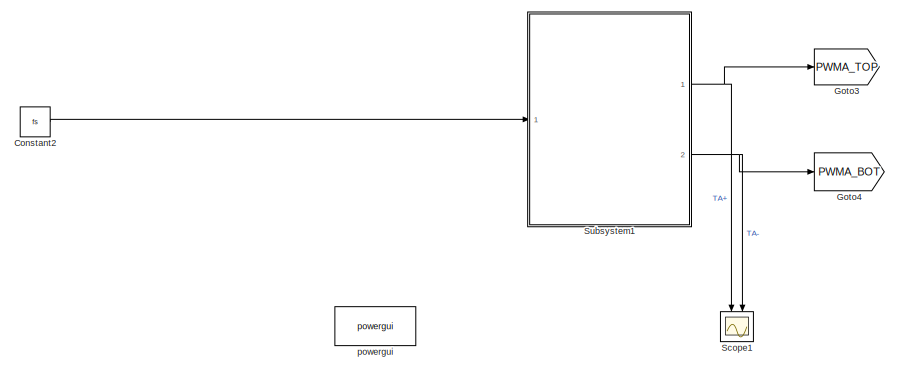
[diagram: root canvas - part 1/7, top center region]
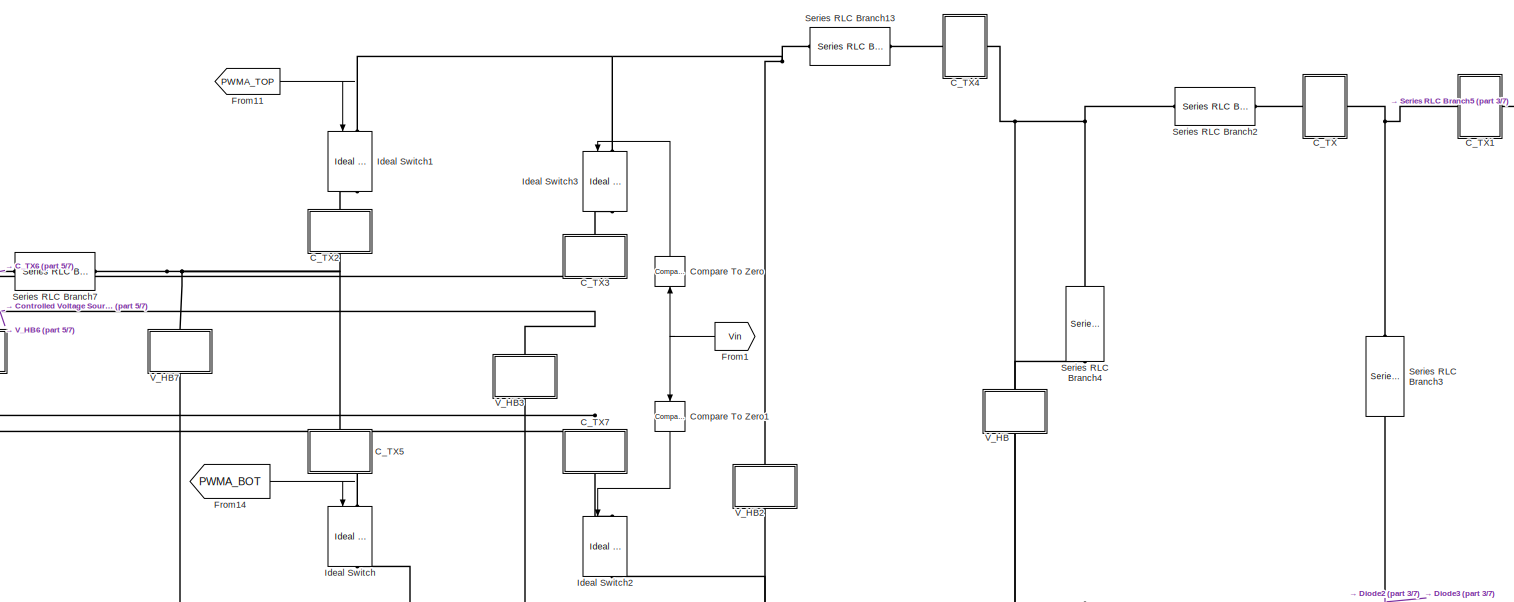
[diagram: root canvas - part 2/7, middle left region]
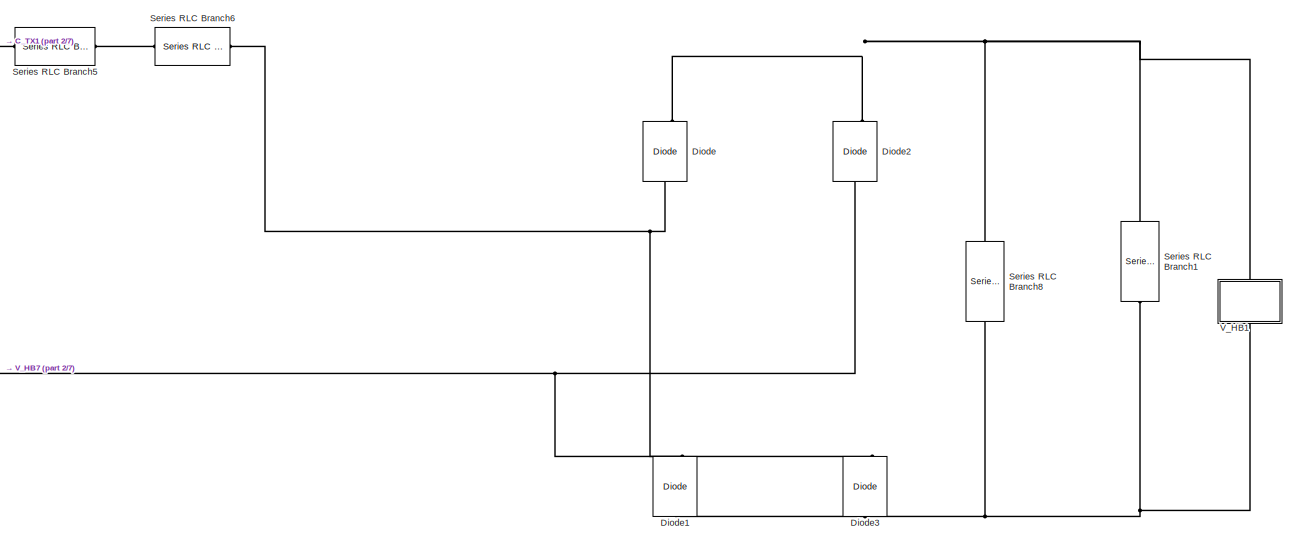
[diagram: root canvas - part 3/7, middle right region]
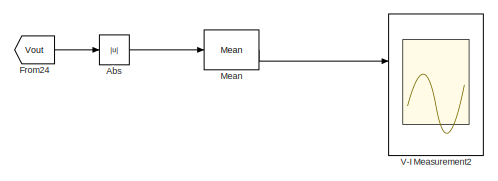
[diagram: root canvas - part 4/7, middle right region]
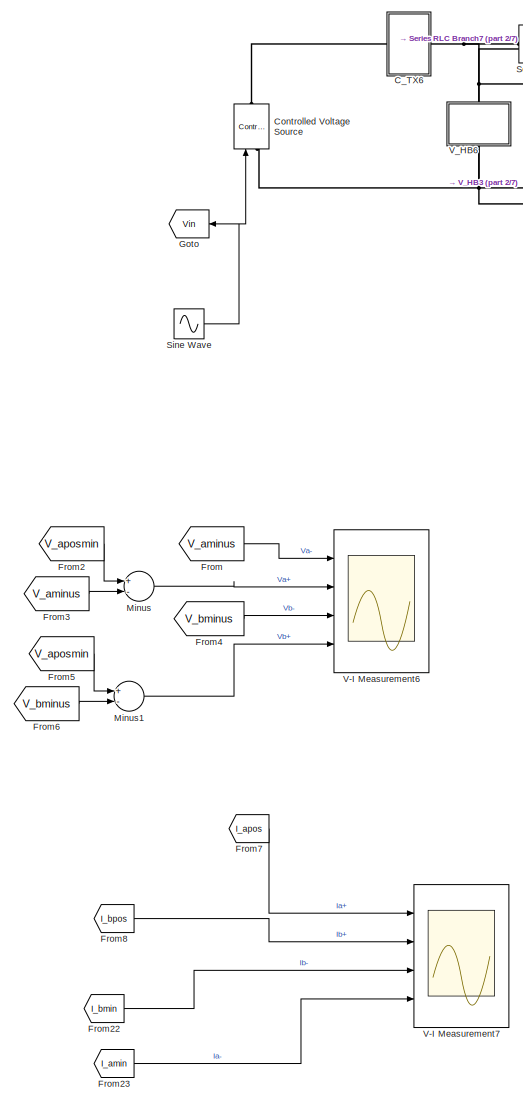
[diagram: root canvas - part 5/7, bottom left region]
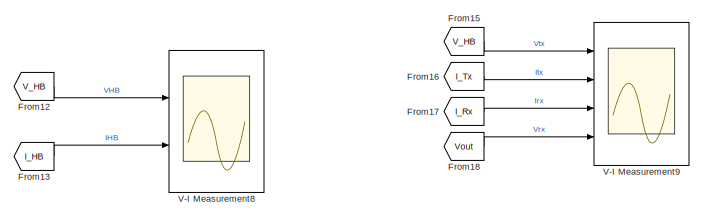
[diagram: root canvas - part 6/7, bottom center region]
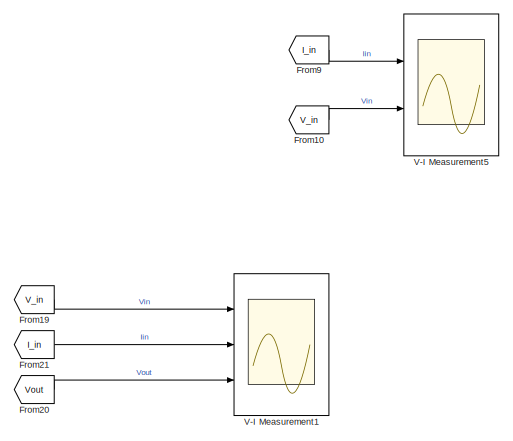
[diagram: root canvas - part 7/7, bottom left region]
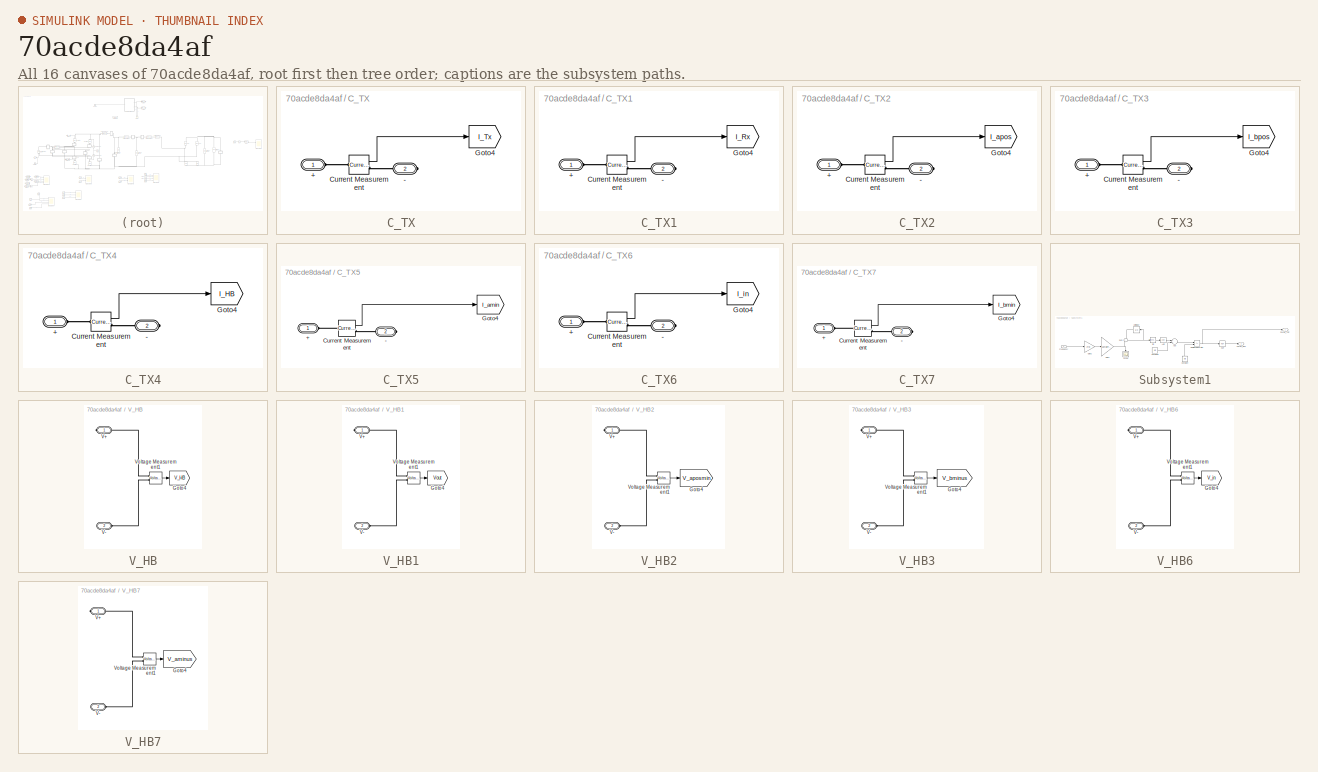
[diagram: thumbnail index - all 16 canvases of the model, root first then tree order]
MODEL slx_70acde8da4af
KIND model
CONFIG AbsTol = auto
CONFIG EnableMultiTasking = off
CONFIG FixedStep = sampleTime
CONFIG InitFcn = fs=150e3; %Hz\nwo=2*pi*fs;\nstopTime=0.1;\nsampleTime=1e-8;\nLp=81e-6; \nLp=32e-6;\nLs=66e-6;\nCs=1/ (Ls*4*pi*pi*150e3*150e3);\nCp=1/ (Lp*4*pi*pi*150e3*150e3);\nRLOAD=20\nRLOAD=16.2\nk=0.2;\nM=sqrt(Lp*Ls)*k;\nCout=1e-6; %F\nfs=150e3*sqrt(1+k^2); %Hz\nRp=0.2
CONFIG MaxStep = auto
CONFIG MinStep = auto
CONFIG RelTol = 1e-3
CONFIG SampleTimeConstraint = Unconstrained
CONFIG Solver = FixedStepAuto
CONFIG SolverName = FixedStepAuto
CONFIG StartTime = 0.0
CONFIG StopTime = stopTime
BLOCK [Abs] Abs
  SaturateOnIntegerOverflow = off
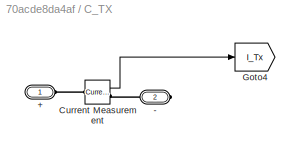
BLOCK [SubSystem] C_TX
  Ports = [0, 0, 0, 0, 0, 1, 1]
  RequestExecContextInheritance = off
BLOCK [PMIOPort] C_TX/+
  Side = Left
BLOCK [PMIOPort] C_TX/-
  Port = 2
  Side = Right
BLOCK [Reference] C_TX/Current Measurement  REF=powerlib/Measurements/Current Measurement
  Ports = [0, 1, 0, 0, 0, 1, 1]
  SourceBlock = powerlib/Measurements/Current Measurement
  SourceProductBaseCode = PS
  SourceProductName = Simscape Power Systems
  SourceType = Current Measurement
  UserDataPersistent = on
BLOCK [Goto] C_TX/Goto4
  GotoTag = I_Tx
  TagVisibility = global
BLOCK [SubSystem] C_TX1
  Ports = [0, 0, 0, 0, 0, 1, 1]
  RequestExecContextInheritance = off
BLOCK [PMIOPort] C_TX1/+
  Side = Left
BLOCK [PMIOPort] C_TX1/-
  Port = 2
  Side = Right
BLOCK [Reference] C_TX1/Current Measurement  REF=powerlib/Measurements/Current Measurement
  Ports = [0, 1, 0, 0, 0, 1, 1]
  SourceBlock = powerlib/Measurements/Current Measurement
  SourceProductBaseCode = PS
  SourceProductName = Simscape Power Systems
  SourceType = Current Measurement
  UserDataPersistent = on
BLOCK [Goto] C_TX1/Goto4
  GotoTag = I_Rx
  TagVisibility = global
BLOCK [SubSystem] C_TX2
  Ports = [0, 0, 0, 0, 0, 1, 1]
  RequestExecContextInheritance = off
BLOCK [PMIOPort] C_TX2/+
  Side = Left
BLOCK [PMIOPort] C_TX2/-
  Port = 2
  Side = Right
BLOCK [Reference] C_TX2/Current Measurement  REF=powerlib/Measurements/Current Measurement
  Ports = [0, 1, 0, 0, 0, 1, 1]
  SourceBlock = powerlib/Measurements/Current Measurement
  SourceProductBaseCode = PS
  SourceProductName = Simscape Power Systems
  SourceType = Current Measurement
  UserDataPersistent = on
BLOCK [Goto] C_TX2/Goto4
  GotoTag = I_apos
  TagVisibility = global
BLOCK [SubSystem] C_TX3
  Ports = [0, 0, 0, 0, 0, 1, 1]
  RequestExecContextInheritance = off
BLOCK [PMIOPort] C_TX3/+
  Side = Left
BLOCK [PMIOPort] C_TX3/-
  Port = 2
  Side = Right
BLOCK [Reference] C_TX3/Current Measurement  REF=powerlib/Measurements/Current Measurement
  Ports = [0, 1, 0, 0, 0, 1, 1]
  SourceBlock = powerlib/Measurements/Current Measurement
  SourceProductBaseCode = PS
  SourceProductName = Simscape Power Systems
  SourceType = Current Measurement
  UserDataPersistent = on
BLOCK [Goto] C_TX3/Goto4
  GotoTag = I_bpos
  TagVisibility = global
BLOCK [SubSystem] C_TX4
  Ports = [0, 0, 0, 0, 0, 1, 1]
  RequestExecContextInheritance = off
BLOCK [PMIOPort] C_TX4/+
  Side = Left
BLOCK [PMIOPort] C_TX4/-
  Port = 2
  Side = Right
BLOCK [Reference] C_TX4/Current Measurement  REF=powerlib/Measurements/Current Measurement
  Ports = [0, 1, 0, 0, 0, 1, 1]
  SourceBlock = powerlib/Measurements/Current Measurement
  SourceProductBaseCode = PS
  SourceProductName = Simscape Power Systems
  SourceType = Current Measurement
  UserDataPersistent = on
BLOCK [Goto] C_TX4/Goto4
  GotoTag = I_HB
  TagVisibility = global
BLOCK [SubSystem] C_TX5
  Ports = [0, 0, 0, 0, 0, 1, 1]
  RequestExecContextInheritance = off
BLOCK [PMIOPort] C_TX5/+
  Side = Left
BLOCK [PMIOPort] C_TX5/-
  Port = 2
  Side = Right
BLOCK [Reference] C_TX5/Current Measurement  REF=powerlib/Measurements/Current Measurement
  Ports = [0, 1, 0, 0, 0, 1, 1]
  SourceBlock = powerlib/Measurements/Current Measurement
  SourceProductBaseCode = PS
  SourceProductName = Simscape Power Systems
  SourceType = Current Measurement
  UserDataPersistent = on
BLOCK [Goto] C_TX5/Goto4
  GotoTag = I_amin
  TagVisibility = global
BLOCK [SubSystem] C_TX6
  Ports = [0, 0, 0, 0, 0, 1, 1]
  RequestExecContextInheritance = off
BLOCK [PMIOPort] C_TX6/+
  Side = Left
BLOCK [PMIOPort] C_TX6/-
  Port = 2
  Side = Right
BLOCK [Reference] C_TX6/Current Measurement  REF=powerlib/Measurements/Current Measurement
  Ports = [0, 1, 0, 0, 0, 1, 1]
  SourceBlock = powerlib/Measurements/Current Measurement
  SourceProductBaseCode = PS
  SourceProductName = Simscape Power Systems
  SourceType = Current Measurement
  UserDataPersistent = on
BLOCK [Goto] C_TX6/Goto4
  GotoTag = I_in
  TagVisibility = global
BLOCK [SubSystem] C_TX7
  Ports = [0, 0, 0, 0, 0, 1, 1]
  RequestExecContextInheritance = off
BLOCK [PMIOPort] C_TX7/+
  Side = Left
BLOCK [PMIOPort] C_TX7/-
  Port = 2
  Side = Right
BLOCK [Reference] C_TX7/Current Measurement  REF=powerlib/Measurements/Current Measurement
  Ports = [0, 1, 0, 0, 0, 1, 1]
  SourceBlock = powerlib/Measurements/Current Measurement
  SourceProductBaseCode = PS
  SourceProductName = Simscape Power Systems
  SourceType = Current Measurement
  UserDataPersistent = on
BLOCK [Goto] C_TX7/Goto4
  GotoTag = I_bmin
  TagVisibility = global
BLOCK [Reference] Compare To Zero  REF=simulink/Logic and Bit
Operations/Compare
To Zero
  Ports = [1, 1]
  SourceBlock = simulink/Logic and Bit\nOperations/Compare\nTo Zero
  SourceProductBaseCode = SL
  SourceProductName = Simulink
  SourceType = Compare To Zero
BLOCK [Reference] Compare To Zero1  REF=simulink/Logic and Bit
Operations/Compare
To Zero
  Ports = [1, 1]
  SourceBlock = simulink/Logic and Bit\nOperations/Compare\nTo Zero
  SourceProductBaseCode = SL
  SourceProductName = Simulink
  SourceType = Compare To Zero
BLOCK [Constant] Constant2
  Value = fs
BLOCK [Reference] Controlled Voltage Source  REF=powerlib/Electrical
Sources/Controlled Voltage Source
  Ports = [1, 0, 0, 0, 0, 1, 1]
  SourceBlock = powerlib/Electrical\nSources/Controlled Voltage Source
  SourceProductBaseCode = PS
  SourceProductName = Simscape Power Systems
  SourceType = Controlled Voltage Source
BLOCK [Reference] Diode  REF=powerlib/Power
Electronics/Diode
  Ports = [0, 1, 0, 0, 0, 1, 1]
  SourceBlock = powerlib/Power\nElectronics/Diode
  SourceProductBaseCode = PS
  SourceProductName = Simscape Power Systems
  SourceType = Diode
BLOCK [Reference] Diode1  REF=powerlib/Power
Electronics/Diode
  Ports = [0, 1, 0, 0, 0, 1, 1]
  SourceBlock = powerlib/Power\nElectronics/Diode
  SourceProductBaseCode = PS
  SourceProductName = Simscape Power Systems
  SourceType = Diode
BLOCK [Reference] Diode2  REF=powerlib/Power
Electronics/Diode
  Ports = [0, 1, 0, 0, 0, 1, 1]
  SourceBlock = powerlib/Power\nElectronics/Diode
  SourceProductBaseCode = PS
  SourceProductName = Simscape Power Systems
  SourceType = Diode
BLOCK [Reference] Diode3  REF=powerlib/Power
Electronics/Diode
  Ports = [0, 1, 0, 0, 0, 1, 1]
  SourceBlock = powerlib/Power\nElectronics/Diode
  SourceProductBaseCode = PS
  SourceProductName = Simscape Power Systems
  SourceType = Diode
BLOCK [From] From
  GotoTag = V_aminus
  TagVisibility = global
BLOCK [From] From1
  GotoTag = Vin
BLOCK [From] From10
  GotoTag = V_in
  TagVisibility = global
BLOCK [From] From11
  GotoTag = PWMA_TOP
  TagVisibility = global
BLOCK [From] From12
  GotoTag = V_HB
  TagVisibility = global
BLOCK [From] From13
  GotoTag = I_HB
  TagVisibility = global
BLOCK [From] From14
  GotoTag = PWMA_BOT
BLOCK [From] From15
  GotoTag = V_HB
  TagVisibility = global
BLOCK [From] From16
  GotoTag = I_Tx
  TagVisibility = global
BLOCK [From] From17
  GotoTag = I_Rx
  TagVisibility = global
BLOCK [From] From18
  GotoTag = Vout
  TagVisibility = global
BLOCK [From] From19
  GotoTag = V_in
  TagVisibility = global
BLOCK [From] From2
  GotoTag = V_aposmin
  TagVisibility = global
BLOCK [From] From20
  GotoTag = Vout
  TagVisibility = global
BLOCK [From] From21
  GotoTag = I_in
  TagVisibility = global
BLOCK [From] From22
  GotoTag = I_bmin
  TagVisibility = global
BLOCK [From] From23
  GotoTag = I_amin
  TagVisibility = global
BLOCK [From] From24
  GotoTag = Vout
  TagVisibility = global
BLOCK [From] From3
  GotoTag = V_aminus
  TagVisibility = global
BLOCK [From] From4
  GotoTag = V_bminus
  TagVisibility = global
BLOCK [From] From5
  GotoTag = V_aposmin
  TagVisibility = global
BLOCK [From] From6
  GotoTag = V_bminus
  TagVisibility = global
BLOCK [From] From7
  GotoTag = I_apos
  TagVisibility = global
BLOCK [From] From8
  GotoTag = I_bpos
  TagVisibility = global
BLOCK [From] From9
  GotoTag = I_in
  TagVisibility = global
BLOCK [Goto] Goto
  GotoTag = Vin
BLOCK [Goto] Goto3
  GotoTag = PWMA_TOP
  TagVisibility = global
BLOCK [Goto] Goto4
  GotoTag = PWMA_BOT
BLOCK [Reference] Ideal Switch  REF=powerlib/Power
Electronics/Ideal Switch
  Ports = [1, 1, 0, 0, 0, 1, 1]
  SourceBlock = powerlib/Power\nElectronics/Ideal Switch
  SourceProductBaseCode = PS
  SourceProductName = Simscape Power Systems
  SourceType = Ideal Switch
BLOCK [Reference] Ideal Switch1  REF=powerlib/Power
Electronics/Ideal Switch
  Ports = [1, 1, 0, 0, 0, 1, 1]
  SourceBlock = powerlib/Power\nElectronics/Ideal Switch
  SourceProductBaseCode = PS
  SourceProductName = Simscape Power Systems
  SourceType = Ideal Switch
BLOCK [Reference] Ideal Switch2  REF=powerlib/Power
Electronics/Ideal Switch
  Ports = [1, 1, 0, 0, 0, 1, 1]
  SourceBlock = powerlib/Power\nElectronics/Ideal Switch
  SourceProductBaseCode = PS
  SourceProductName = Simscape Power Systems
  SourceType = Ideal Switch
BLOCK [Reference] Ideal Switch3  REF=powerlib/Power
Electronics/Ideal Switch
  Ports = [1, 1, 0, 0, 0, 1, 1]
  SourceBlock = powerlib/Power\nElectronics/Ideal Switch
  SourceProductBaseCode = PS
  SourceProductName = Simscape Power Systems
  SourceType = Ideal Switch
BLOCK [Reference] Mean  REF=dspstat3/Mean
  Ports = [1, 1]
  SourceBlock = dspstat3/Mean
  SourceProductBaseCode = DS
  SourceProductName = DSP System Toolbox
  SourceType = Mean
  UserDataPersistent = on
BLOCK [Sum] Minus
  InputSameDT = off
  Inputs = +-
  OutDataTypeStr = Inherit: Inherit via internal rule
  Ports = [2, 1]
  SaturateOnIntegerOverflow = off
BLOCK [Sum] Minus1
  InputSameDT = off
  Inputs = +-
  OutDataTypeStr = Inherit: Inherit via internal rule
  Ports = [2, 1]
  SaturateOnIntegerOverflow = off
BLOCK [Scope] Scope1
  Floating = off
  NumInputPorts = 2
  Ports = [2]
  ScopeSpecificationString = Simulink.scopes.TimeScopeBlockCfg('CurrentConfiguration', extmgr.ConfigurationSet(extmgr.Configuration('Core','General UI',true),extmgr.Configuration('Core','Source UI',true),extmgr.Configuration('Sources','WiredSimulink',true,'DataLoggingVariableName','ScopeData1'),extmgr.Configuration('Visuals','Time Domain',true,'SerializedDisplays',{struct('MinYLimReal','0.05054','MaxYLimReal','1.05967','YLabe...<+1584ch>
BLOCK [Reference] Series RLC Branch1  REF=powerlib/Elements/Series RLC Branch
  Ports = [0, 0, 0, 0, 0, 1, 1]
  SourceBlock = powerlib/Elements/Series RLC Branch
  SourceProductBaseCode = PS
  SourceProductName = Simscape Power Systems
  SourceType = Series RLC Branch
BLOCK [Reference] Series RLC Branch13  REF=powerlib/Elements/Series RLC Branch
  Ports = [0, 0, 0, 0, 0, 1, 1]
  SourceBlock = powerlib/Elements/Series RLC Branch
  SourceProductBaseCode = PS
  SourceProductName = Simscape Power Systems
  SourceType = Series RLC Branch
BLOCK [Reference] Series RLC Branch2  REF=powerlib/Elements/Series RLC Branch
  Ports = [0, 0, 0, 0, 0, 1, 1]
  SourceBlock = powerlib/Elements/Series RLC Branch
  SourceProductBaseCode = PS
  SourceProductName = Simscape Power Systems
  SourceType = Series RLC Branch
BLOCK [Reference] Series RLC Branch3  REF=powerlib/Elements/Series RLC Branch
  Ports = [0, 0, 0, 0, 0, 1, 1]
  SourceBlock = powerlib/Elements/Series RLC Branch
  SourceProductBaseCode = PS
  SourceProductName = Simscape Power Systems
  SourceType = Series RLC Branch
BLOCK [Reference] Series RLC Branch4  REF=powerlib/Elements/Series RLC Branch
  Ports = [0, 0, 0, 0, 0, 1, 1]
  SourceBlock = powerlib/Elements/Series RLC Branch
  SourceProductBaseCode = PS
  SourceProductName = Simscape Power Systems
  SourceType = Series RLC Branch
BLOCK [Reference] Series RLC Branch5  REF=powerlib/Elements/Series RLC Branch
  Ports = [0, 0, 0, 0, 0, 1, 1]
  SourceBlock = powerlib/Elements/Series RLC Branch
  SourceProductBaseCode = PS
  SourceProductName = Simscape Power Systems
  SourceType = Series RLC Branch
BLOCK [Reference] Series RLC Branch6  REF=powerlib/Elements/Series RLC Branch
  Ports = [0, 0, 0, 0, 0, 1, 1]
  SourceBlock = powerlib/Elements/Series RLC Branch
  SourceProductBaseCode = PS
  SourceProductName = Simscape Power Systems
  SourceType = Series RLC Branch
BLOCK [Reference] Series RLC Branch7  REF=powerlib/Elements/Series RLC Branch
  Ports = [0, 0, 0, 0, 0, 1, 1]
  SourceBlock = powerlib/Elements/Series RLC Branch
  SourceProductBaseCode = PS
  SourceProductName = Simscape Power Systems
  SourceType = Series RLC Branch
BLOCK [Reference] Series RLC Branch8  REF=powerlib/Elements/Series RLC Branch
  Ports = [0, 0, 0, 0, 0, 1, 1]
  SourceBlock = powerlib/Elements/Series RLC Branch
  SourceProductBaseCode = PS
  SourceProductName = Simscape Power Systems
  SourceType = Series RLC Branch
BLOCK [Sin] Sine Wave
  Amplitude = 50
  Frequency = 2*pi*50
  Ports = [0, 1]
  SampleTime = 0
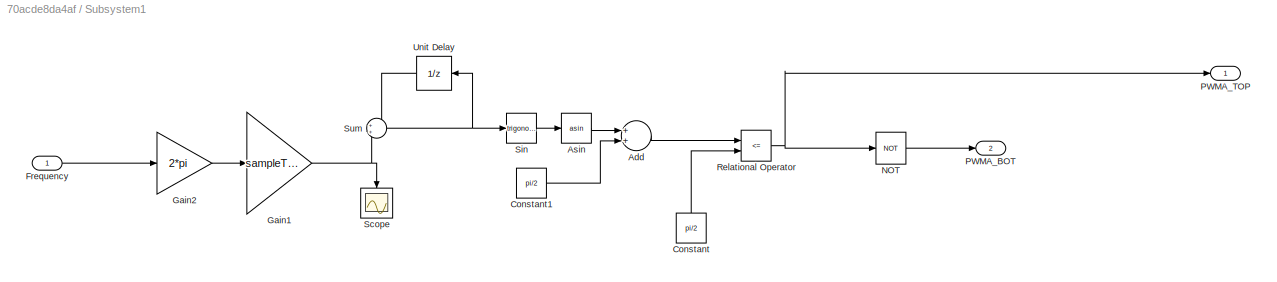
BLOCK [SubSystem] Subsystem1
  Ports = [1, 2]
  RequestExecContextInheritance = off
BLOCK [Sum] Subsystem1/Add
  InputSameDT = off
  OutDataTypeStr = Inherit: Inherit via internal rule
  Ports = [2, 1]
  SaturateOnIntegerOverflow = off
BLOCK [Trigonometry] Subsystem1/Asin
  Operator = asin
  Ports = [1, 1]
BLOCK [Constant] Subsystem1/Constant
  Value = pi/2
BLOCK [Constant] Subsystem1/Constant1
  Value = pi/2
BLOCK [Inport] Subsystem1/Frequency
  IconDisplay = Port number
BLOCK [Gain] Subsystem1/Gain1
  Gain = sampleTime
  OutDataTypeStr = Inherit: Inherit via internal rule
  ParamDataTypeStr = Inherit: Inherit via internal rule
  SaturateOnIntegerOverflow = off
BLOCK [Gain] Subsystem1/Gain2
  Gain = 2*pi
  OutDataTypeStr = Inherit: Inherit via internal rule
  ParamDataTypeStr = Inherit: Inherit via internal rule
  SaturateOnIntegerOverflow = off
BLOCK [Logic] Subsystem1/NOT
  AllPortsSameDT = off
  IconShape = distinctive
  Operator = NOT
  OutDataTypeStr = boolean
  Ports = [1, 1]
BLOCK [Outport] Subsystem1/PWMA_BOT
  IconDisplay = Port number
  Port = 2
BLOCK [Outport] Subsystem1/PWMA_TOP
  IconDisplay = Port number
BLOCK [RelationalOperator] Subsystem1/Relational Operator
  InputSameDT = off
  Operator = <=
  OutDataTypeStr = boolean
  Ports = [2, 1]
  RndMeth = Simplest
BLOCK [Scope] Subsystem1/Scope
  Floating = off
  NumInputPorts = 1
  Ports = [1]
  ScopeSpecificationString = Simulink.scopes.TimeScopeBlockCfg('CurrentConfiguration', extmgr.ConfigurationSet(extmgr.Configuration('Core','General UI',true),extmgr.Configuration('Core','Source UI',true),extmgr.Configuration('Sources','WiredSimulink',true),extmgr.Configuration('Visuals','Time Domain',true),extmgr.Configuration('Tools','Plot Navigation',true),extmgr.Configuration('Tools','Measurements',true)),'Version','2018a'...<+1ch>
BLOCK [Trigonometry] Subsystem1/Sin
  Ports = [1, 1]
BLOCK [Sum] Subsystem1/Sum
  IconShape = round
  InputSameDT = off
  OutDataTypeStr = Inherit: Inherit via internal rule
  Ports = [2, 1]
  SaturateOnIntegerOverflow = off
BLOCK [UnitDelay] Subsystem1/Unit Delay
  InputProcessing = Elements as channels (sample based)
  SampleTime = -1
BLOCK [Scope] V-I Measurement1
  Floating = off
  NumInputPorts = 3
  Ports = [3]
  ScopeSpecificationString = Simulink.scopes.TimeScopeBlockCfg('CurrentConfiguration', extmgr.ConfigurationSet(extmgr.Configuration('Core','General UI',true,'FigureColor',[0.831372549019608 0.815686274509804 0.784313725490196]),extmgr.Configuration('Core','Source UI',true),extmgr.Configuration('Sources','WiredSimulink',true,'DataLoggingVariableName','ScopeData5'),extmgr.Configuration('Visuals','Time Domain',true,'SerializedDi...<+3168ch>
BLOCK [Scope] V-I Measurement2
  Floating = off
  NumInputPorts = 2
  Ports = [2]
  ScopeSpecificationString = Simulink.scopes.TimeScopeBlockCfg('CurrentConfiguration', extmgr.ConfigurationSet(extmgr.Configuration('Core','General UI',true,'FigureColor',[0.831372549019608 0.815686274509804 0.784313725490196]),extmgr.Configuration('Core','Source UI',true),extmgr.Configuration('Sources','WiredSimulink',true,'DataLoggingVariableName','ScopeData6'),extmgr.Configuration('Visuals','Time Domain',true,'SerializedDi...<+5573ch>
BLOCK [Scope] V-I Measurement5
  Floating = off
  NumInputPorts = 2
  Ports = [2]
  ScopeSpecificationString = Simulink.scopes.TimeScopeBlockCfg('CurrentConfiguration', extmgr.ConfigurationSet(extmgr.Configuration('Core','General UI',true,'FigureColor',[0.831372549019608 0.815686274509804 0.784313725490196]),extmgr.Configuration('Core','Source UI',true),extmgr.Configuration('Sources','WiredSimulink',true,'DataLoggingVariableName','ScopeData5'),extmgr.Configuration('Visuals','Time Domain',true,'SerializedDi...<+5555ch>
BLOCK [Scope] V-I Measurement6
  Floating = off
  NumInputPorts = 4
  Ports = [4]
  ScopeSpecificationString = Simulink.scopes.TimeScopeBlockCfg('CurrentConfiguration', extmgr.ConfigurationSet(extmgr.Configuration('Core','General UI',true,'FigureColor',[0.831372549019608 0.815686274509804 0.784313725490196]),extmgr.Configuration('Core','Source UI',true),extmgr.Configuration('Sources','WiredSimulink',true,'DataLoggingVariableName','ScopeData1'),extmgr.Configuration('Visuals','Time Domain',true,'SerializedDi...<+4255ch>
BLOCK [Scope] V-I Measurement7
  Floating = off
  NumInputPorts = 4
  Ports = [4]
  ScopeSpecificationString = Simulink.scopes.TimeScopeBlockCfg('CurrentConfiguration', extmgr.ConfigurationSet(extmgr.Configuration('Core','General UI',true,'FigureColor',[0.831372549019608 0.815686274509804 0.784313725490196]),extmgr.Configuration('Core','Source UI',true),extmgr.Configuration('Sources','WiredSimulink',true,'DataLoggingVariableName','ScopeData2'),extmgr.Configuration('Visuals','Time Domain',true,'SerializedDi...<+4071ch>
BLOCK [Scope] V-I Measurement8
  Floating = off
  NumInputPorts = 2
  Ports = [2]
  ScopeSpecificationString = Simulink.scopes.TimeScopeBlockCfg('CurrentConfiguration', extmgr.ConfigurationSet(extmgr.Configuration('Core','General UI',true,'FigureColor',[0.831372549019608 0.815686274509804 0.784313725490196]),extmgr.Configuration('Core','Source UI',true),extmgr.Configuration('Sources','WiredSimulink',true,'DataLoggingVariableName','ScopeData3'),extmgr.Configuration('Visuals','Time Domain',true,'SerializedDi...<+2467ch>
BLOCK [Scope] V-I Measurement9
  Floating = off
  NumInputPorts = 4
  Ports = [4]
  ScopeSpecificationString = Simulink.scopes.TimeScopeBlockCfg('CurrentConfiguration', extmgr.ConfigurationSet(extmgr.Configuration('Core','General UI',true,'FigureColor',[0.831372549019608 0.815686274509804 0.784313725490196]),extmgr.Configuration('Core','Source UI',true),extmgr.Configuration('Sources','WiredSimulink',true,'DataLoggingVariableName','ScopeData4'),extmgr.Configuration('Visuals','Time Domain',true,'SerializedDi...<+4052ch>
BLOCK [SubSystem] V_HB
  Ports = [0, 0, 0, 0, 0, 1, 1]
  RequestExecContextInheritance = off
BLOCK [Goto] V_HB/Goto4
  GotoTag = V_HB
  TagVisibility = global
BLOCK [PMIOPort] V_HB/V+
  Side = Right
BLOCK [PMIOPort] V_HB/V-
  Port = 2
  Side = Left
BLOCK [Reference] V_HB/Voltage Measurement1  REF=powerlib/Measurements/Voltage Measurement
  Ports = [0, 1, 0, 0, 0, 2]
  SourceBlock = powerlib/Measurements/Voltage Measurement
  SourceProductBaseCode = PS
  SourceProductName = Simscape Power Systems
  SourceType = Voltage Measurement
  UserDataPersistent = on
BLOCK [SubSystem] V_HB1
  Ports = [0, 0, 0, 0, 0, 1, 1]
  RequestExecContextInheritance = off
BLOCK [Goto] V_HB1/Goto4
  GotoTag = Vout
  TagVisibility = global
BLOCK [PMIOPort] V_HB1/V+
  Side = Right
BLOCK [PMIOPort] V_HB1/V-
  Port = 2
  Side = Left
BLOCK [Reference] V_HB1/Voltage Measurement1  REF=powerlib/Measurements/Voltage Measurement
  Ports = [0, 1, 0, 0, 0, 2]
  SourceBlock = powerlib/Measurements/Voltage Measurement
  SourceProductBaseCode = PS
  SourceProductName = Simscape Power Systems
  SourceType = Voltage Measurement
  UserDataPersistent = on
BLOCK [SubSystem] V_HB2
  Ports = [0, 0, 0, 0, 0, 1, 1]
  RequestExecContextInheritance = off
BLOCK [Goto] V_HB2/Goto4
  GotoTag = V_aposmin
  TagVisibility = global
BLOCK [PMIOPort] V_HB2/V+
  Side = Right
BLOCK [PMIOPort] V_HB2/V-
  Port = 2
  Side = Left
BLOCK [Reference] V_HB2/Voltage Measurement1  REF=powerlib/Measurements/Voltage Measurement
  Ports = [0, 1, 0, 0, 0, 2]
  SourceBlock = powerlib/Measurements/Voltage Measurement
  SourceProductBaseCode = PS
  SourceProductName = Simscape Power Systems
  SourceType = Voltage Measurement
  UserDataPersistent = on
BLOCK [SubSystem] V_HB3
  Ports = [0, 0, 0, 0, 0, 1, 1]
  RequestExecContextInheritance = off
BLOCK [Goto] V_HB3/Goto4
  GotoTag = V_bminus
  TagVisibility = global
BLOCK [PMIOPort] V_HB3/V+
  Side = Right
BLOCK [PMIOPort] V_HB3/V-
  Port = 2
  Side = Left
BLOCK [Reference] V_HB3/Voltage Measurement1  REF=powerlib/Measurements/Voltage Measurement
  Ports = [0, 1, 0, 0, 0, 2]
  SourceBlock = powerlib/Measurements/Voltage Measurement
  SourceProductBaseCode = PS
  SourceProductName = Simscape Power Systems
  SourceType = Voltage Measurement
  UserDataPersistent = on
BLOCK [SubSystem] V_HB6
  Ports = [0, 0, 0, 0, 0, 1, 1]
  RequestExecContextInheritance = off
BLOCK [Goto] V_HB6/Goto4
  GotoTag = V_in
  TagVisibility = global
BLOCK [PMIOPort] V_HB6/V+
  Side = Right
BLOCK [PMIOPort] V_HB6/V-
  Port = 2
  Side = Left
BLOCK [Reference] V_HB6/Voltage Measurement1  REF=powerlib/Measurements/Voltage Measurement
  Ports = [0, 1, 0, 0, 0, 2]
  SourceBlock = powerlib/Measurements/Voltage Measurement
  SourceProductBaseCode = PS
  SourceProductName = Simscape Power Systems
  SourceType = Voltage Measurement
  UserDataPersistent = on
BLOCK [SubSystem] V_HB7
  Ports = [0, 0, 0, 0, 0, 1, 1]
  RequestExecContextInheritance = off
BLOCK [Goto] V_HB7/Goto4
  GotoTag = V_aminus
  TagVisibility = global
BLOCK [PMIOPort] V_HB7/V+
  Side = Right
BLOCK [PMIOPort] V_HB7/V-
  Port = 2
  Side = Left
BLOCK [Reference] V_HB7/Voltage Measurement1  REF=powerlib/Measurements/Voltage Measurement
  Ports = [0, 1, 0, 0, 0, 2]
  SourceBlock = powerlib/Measurements/Voltage Measurement
  SourceProductBaseCode = PS
  SourceProductName = Simscape Power Systems
  SourceType = Voltage Measurement
  UserDataPersistent = on
BLOCK [Reference] powergui  REF=powerlib/powergui
  Ports = []
  Priority = 1
  SourceBlock = powerlib/powergui
  SourceProductBaseCode = PS
  SourceProductName = Simscape Power Systems
  SourceType = PSB option menu block
LINE Abs:1 -> Mean:1
LINE C_TX/Current Measurement:1 -> C_TX/Goto4:1
LINE C_TX1/Current Measurement:1 -> C_TX1/Goto4:1
LINE C_TX2/Current Measurement:1 -> C_TX2/Goto4:1
LINE C_TX3/Current Measurement:1 -> C_TX3/Goto4:1
LINE C_TX4/Current Measurement:1 -> C_TX4/Goto4:1
LINE C_TX5/Current Measurement:1 -> C_TX5/Goto4:1
LINE C_TX6/Current Measurement:1 -> C_TX6/Goto4:1
LINE C_TX7/Current Measurement:1 -> C_TX7/Goto4:1
LINE Compare To Zero1:1 -> Ideal Switch2:1
LINE Compare To Zero:1 -> Ideal Switch3:1
LINE Constant2:1 -> Subsystem1:1
LINE From10:1 -> V-I Measurement5:2
LINE From11:1 -> Ideal Switch1:1
LINE From12:1 -> V-I Measurement8:1
LINE From13:1 -> V-I Measurement8:2
LINE From14:1 -> Ideal Switch:1
LINE From15:1 -> V-I Measurement9:1
LINE From16:1 -> V-I Measurement9:2
LINE From17:1 -> V-I Measurement9:3
LINE From18:1 -> V-I Measurement9:4
LINE From19:1 -> V-I Measurement1:1
NET From1:1 -> Compare To Zero1:1, Compare To Zero:1
LINE From20:1 -> V-I Measurement1:3
LINE From21:1 -> V-I Measurement1:2
LINE From22:1 -> V-I Measurement7:3
LINE From23:1 -> V-I Measurement7:4
LINE From24:1 -> Abs:1
LINE From2:1 -> Minus:1
LINE From3:1 -> Minus:2
LINE From4:1 -> V-I Measurement6:3
LINE From5:1 -> Minus1:1
LINE From6:1 -> Minus1:2
LINE From7:1 -> V-I Measurement7:1
LINE From8:1 -> V-I Measurement7:2
LINE From9:1 -> V-I Measurement5:1
LINE From:1 -> V-I Measurement6:1
LINE Mean:1 -> V-I Measurement2:1
LINE Minus1:1 -> V-I Measurement6:4
LINE Minus:1 -> V-I Measurement6:2
NET Sine Wave:1 -> Controlled Voltage Source:1, Goto:1
LINE Subsystem1/Add:1 -> Subsystem1/Relational Operator:1
LINE Subsystem1/Asin:1 -> Subsystem1/Add:1
LINE Subsystem1/Constant1:1 -> Subsystem1/Add:2
LINE Subsystem1/Constant:1 -> Subsystem1/Relational Operator:2
LINE Subsystem1/Frequency:1 -> Subsystem1/Gain2:1
NET Subsystem1/Gain1:1 -> Subsystem1/Scope:1, Subsystem1/Sum:2
LINE Subsystem1/Gain2:1 -> Subsystem1/Gain1:1
LINE Subsystem1/NOT:1 -> Subsystem1/PWMA_BOT:1
NET Subsystem1/Relational Operator:1 -> Subsystem1/NOT:1, Subsystem1/PWMA_TOP:1
LINE Subsystem1/Sin:1 -> Subsystem1/Asin:1
NET Subsystem1/Sum:1 -> Subsystem1/Sin:1, Subsystem1/Unit Delay:1
LINE Subsystem1/Unit Delay:1 -> Subsystem1/Sum:1
NET Subsystem1:1 -> Goto3:1, Scope1:1
NET Subsystem1:2 -> Goto4:1, Scope1:2
LINE V_HB/Voltage Measurement1:1 -> V_HB/Goto4:1
LINE V_HB1/Voltage Measurement1:1 -> V_HB1/Goto4:1
LINE V_HB2/Voltage Measurement1:1 -> V_HB2/Goto4:1
LINE V_HB3/Voltage Measurement1:1 -> V_HB3/Goto4:1
LINE V_HB6/Voltage Measurement1:1 -> V_HB6/Goto4:1
LINE V_HB7/Voltage Measurement1:1 -> V_HB7/Goto4:1
PLINE C_TX/+:RConn1 -- C_TX/Current Measurement:LConn1
PLINE C_TX/-:RConn1 -- C_TX/Current Measurement:RConn1
PLINE C_TX1/+:RConn1 -- C_TX1/Current Measurement:LConn1
PLINE C_TX1/-:RConn1 -- C_TX1/Current Measurement:RConn1
PNET net1: C_TX1:LConn1 -- C_TX:RConn1 -- Series RLC Branch3:LConn1
PLINE C_TX1:RConn1 -- Series RLC Branch5:LConn1
PLINE C_TX2/+:RConn1 -- C_TX2/Current Measurement:LConn1
PLINE C_TX2/-:RConn1 -- C_TX2/Current Measurement:RConn1
PNET net2: C_TX2:LConn1 -- C_TX5:LConn1 -- Series RLC Branch7:RConn1 -- V_HB7:RConn1
PLINE C_TX2:RConn1 -- Ideal Switch1:RConn1
PLINE C_TX3/+:RConn1 -- C_TX3/Current Measurement:LConn1
PLINE C_TX3/-:RConn1 -- C_TX3/Current Measurement:RConn1
PNET net3: C_TX3:LConn1 -- C_TX7:LConn1 -- Controlled Voltage Source:LConn1 -- V_HB3:RConn1 -- V_HB6:LConn1
PLINE C_TX3:RConn1 -- Ideal Switch3:RConn1
PLINE C_TX4/+:RConn1 -- C_TX4/Current Measurement:LConn1
PLINE C_TX4/-:RConn1 -- C_TX4/Current Measurement:RConn1
PLINE C_TX4:LConn1 -- Series RLC Branch13:LConn1
PNET net4: C_TX4:RConn1 -- Series RLC Branch2:LConn1 -- Series RLC Branch4:LConn1 -- V_HB:RConn1
PLINE C_TX5/+:RConn1 -- C_TX5/Current Measurement:LConn1
PLINE C_TX5/-:RConn1 -- C_TX5/Current Measurement:RConn1
PLINE C_TX5:RConn1 -- Ideal Switch:LConn1
PLINE C_TX6/+:RConn1 -- C_TX6/Current Measurement:LConn1
PLINE C_TX6/-:RConn1 -- C_TX6/Current Measurement:RConn1
PLINE C_TX6:LConn1 -- Controlled Voltage Source:RConn1
PNET net5: C_TX6:RConn1 -- Series RLC Branch7:LConn1 -- V_HB6:RConn1
PLINE C_TX7/+:RConn1 -- C_TX7/Current Measurement:LConn1
PLINE C_TX7/-:RConn1 -- C_TX7/Current Measurement:RConn1
PLINE C_TX7:RConn1 -- Ideal Switch2:LConn1
PLINE C_TX:LConn1 -- Series RLC Branch2:RConn1
PNET net6: Diode1:LConn1 -- Diode3:LConn1 -- Series RLC Branch1:LConn1 -- Series RLC Branch8:LConn1 -- V_HB1:LConn1
PNET net7: Diode1:RConn1 -- Diode:LConn1 -- Series RLC Branch6:LConn1
PNET net8: Diode2:LConn1 -- Diode3:RConn1 -- Ideal Switch2:RConn1 -- Ideal Switch:RConn1 -- Series RLC Branch3:RConn1 -- Series RLC Branch4:RConn1 -- V_HB2:LConn1 -- V_HB3:LConn1 -- V_HB7:LConn1 -- V_HB:LConn1
PNET net9: Diode2:RConn1 -- Diode:RConn1 -- Series RLC Branch1:RConn1 -- Series RLC Branch8:RConn1 -- V_HB1:RConn1
PNET net10: Ideal Switch1:LConn1 -- Ideal Switch3:LConn1 -- Series RLC Branch13:RConn1 -- V_HB2:RConn1
PLINE Series RLC Branch5:RConn1 -- Series RLC Branch6:RConn1
PLINE V_HB/V+:RConn1 -- V_HB/Voltage Measurement1:LConn1
PLINE V_HB/V-:RConn1 -- V_HB/Voltage Measurement1:LConn2
PLINE V_HB1/V+:RConn1 -- V_HB1/Voltage Measurement1:LConn1
PLINE V_HB1/V-:RConn1 -- V_HB1/Voltage Measurement1:LConn2
PLINE V_HB2/V+:RConn1 -- V_HB2/Voltage Measurement1:LConn1
PLINE V_HB2/V-:RConn1 -- V_HB2/Voltage Measurement1:LConn2
PLINE V_HB3/V+:RConn1 -- V_HB3/Voltage Measurement1:LConn1
PLINE V_HB3/V-:RConn1 -- V_HB3/Voltage Measurement1:LConn2
PLINE V_HB6/V+:RConn1 -- V_HB6/Voltage Measurement1:LConn1
PLINE V_HB6/V-:RConn1 -- V_HB6/Voltage Measurement1:LConn2
PLINE V_HB7/V+:RConn1 -- V_HB7/Voltage Measurement1:LConn1
PLINE V_HB7/V-:RConn1 -- V_HB7/Voltage Measurement1:LConn2
note: NET lines group one-source signal fan-out (src -> all destinations, sorted); 1:1 wires keep LINE; PNET lines group multi-terminal physical nets as a canonical sorted terminal list (undirected conserving connections); 2-terminal nets keep the pairwise PLINE form
